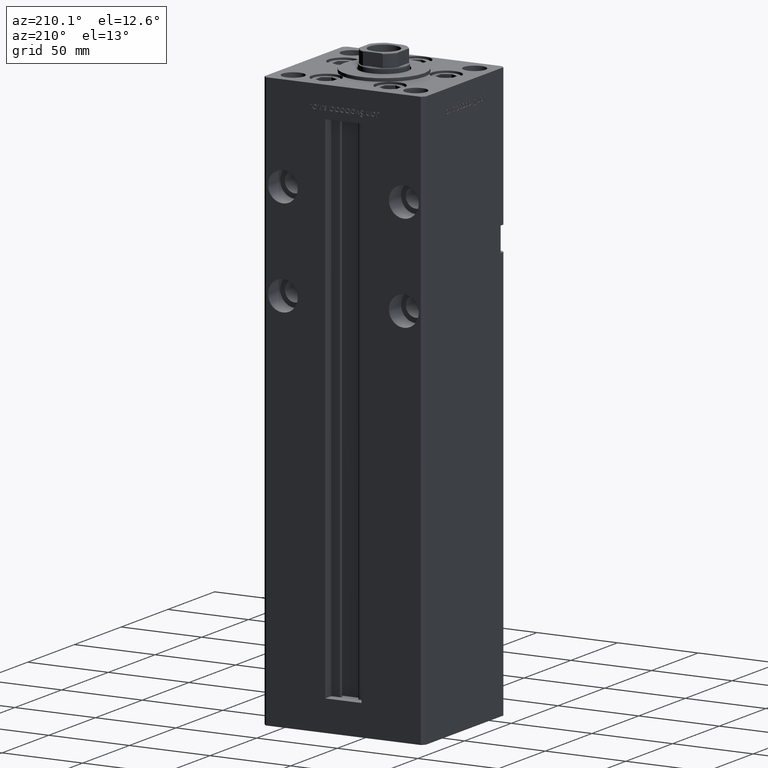
[diagram: clean part render]
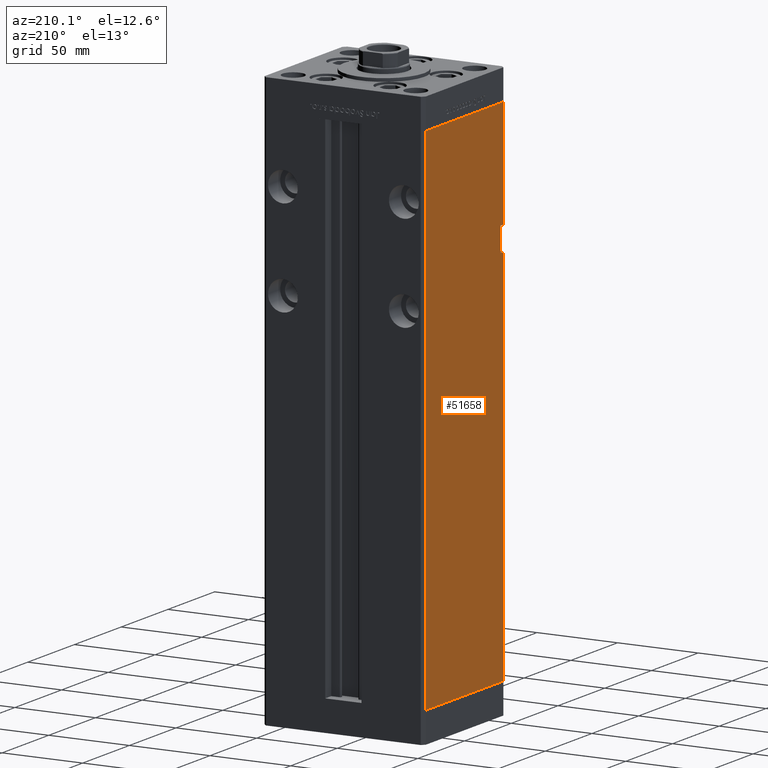
[diagram: same view with one face highlighted and labeled with its STEP entity id]
A machine part, auxiliary view. The second image highlights one B-rep face of the part: STEP entity #51658.
In plain terms, the highlighted planar face has unit normal (1, 0, 0).
Its self-contained STEP definition (entity closure, byte-faithful):
#32 = VECTOR ( 'NONE', #28188, 1000.000000000000000 ) ;
#720 = CARTESIAN_POINT ( 'NONE',  ( -49.99999999999998579, -41.49999999999999289, 236.0000000000000000 ) ) ;
#1061 = EDGE_CURVE ( 'NONE', #40326, #21467, #47812, .T. ) ;
#2598 = FACE_OUTER_BOUND ( 'NONE', #42923, .T. ) ;
#2941 = LINE ( 'NONE', #44570, #32 ) ;
#3122 = VECTOR ( 'NONE', #50078, 1000.000000000000000 ) ;
#3483 = EDGE_CURVE ( 'NONE', #6832, #21467, #7446, .T. ) ;
#3602 = ORIENTED_EDGE ( 'NONE', *, *, #46039, .F. ) ;
#4076 = VECTOR ( 'NONE', #19037, 1000.000000000000000 ) ;
#4580 = DIRECTION ( 'NONE',  ( -0.000000000000000000, -0.000000000000000000, -1.000000000000000000 ) ) ;
#4757 = LINE ( 'NONE', #33523, #17000 ) ;
#5449 = EDGE_CURVE ( 'NONE', #39629, #27663, #4757, .T. ) ;
#6832 = VERTEX_POINT ( 'NONE', #46292 ) ;
#6847 = VERTEX_POINT ( 'NONE', #17800 ) ;
#7446 = LINE ( 'NONE', #40258, #4076 ) ;
#8321 = EDGE_CURVE ( 'NONE', #6832, #37068, #17953, .T. ) ;
#11175 = DIRECTION ( 'NONE',  ( -3.344045254895050480E-16, 1.000000000000000000, 0.000000000000000000 ) ) ;
#13013 = AXIS2_PLACEMENT_3D ( 'NONE', #35401, #47994, #11175 ) ;
#14245 = VECTOR ( 'NONE', #15344, 1000.000000000000000 ) ;
#14637 = ORIENTED_EDGE ( 'NONE', *, *, #5449, .T. ) ;
#15344 = DIRECTION ( 'NONE',  ( -0.000000000000000000, -1.000000000000000000, -0.000000000000000000 ) ) ;
#15506 = ORIENTED_EDGE ( 'NONE', *, *, #21640, .F. ) ;
#17000 = VECTOR ( 'NONE', #29760, 1000.000000000000000 ) ;
#17800 = CARTESIAN_POINT ( 'NONE',  ( -50.00000000000001421, 41.49999999999999289, 318.5000000000000000 ) ) ;
#17949 = ORIENTED_EDGE ( 'NONE', *, *, #27794, .T. ) ;
#17953 = LINE ( 'NONE', #42164, #36020 ) ;
#18807 = DIRECTION ( 'NONE',  ( -0.000000000000000000, -0.000000000000000000, -1.000000000000000000 ) ) ;
#18991 = PLANE ( 'NONE',  #13013 ) ;
#19037 = DIRECTION ( 'NONE',  ( -0.000000000000000000, -1.000000000000000000, -0.000000000000000000 ) ) ;
#20941 = ORIENTED_EDGE ( 'NONE', *, *, #25176, .F. ) ;
#21467 = VERTEX_POINT ( 'NONE', #48665 ) ;
#21515 = LINE ( 'NONE', #33339, #49311 ) ;
#21640 = EDGE_CURVE ( 'NONE', #29461, #27663, #21515, .T. ) ;
#24476 = CARTESIAN_POINT ( 'NONE',  ( -49.99999999999998579, -38.50000000000000000, 236.0000000000000000 ) ) ;
#25176 = EDGE_CURVE ( 'NONE', #37068, #29461, #44888, .T. ) ;
#27663 = VERTEX_POINT ( 'NONE', #30220 ) ;
#27794 = EDGE_CURVE ( 'NONE', #6847, #39629, #29664, .T. ) ;
#28188 = DIRECTION ( 'NONE',  ( 3.344045254895050973E-16, -1.000000000000000000, 0.000000000000000000 ) ) ;
#29461 = VERTEX_POINT ( 'NONE', #720 ) ;
#29664 = LINE ( 'NONE', #45782, #3122 ) ;
#29760 = DIRECTION ( 'NONE',  ( 3.344045254895050973E-16, -1.000000000000000000, 0.000000000000000000 ) ) ;
#30220 = CARTESIAN_POINT ( 'NONE',  ( -49.99999999999998579, -41.49999999999999289, 0.000000000000000000 ) ) ;
#31051 = CARTESIAN_POINT ( 'NONE',  ( -49.99999999999998579, -41.49999999999999289, 318.5000000000000000 ) ) ;
#31171 = CARTESIAN_POINT ( 'NONE',  ( -49.99999999999998579, -38.50000000000000000, 236.0000000000000000 ) ) ;
#33339 = CARTESIAN_POINT ( 'NONE',  ( -49.99999999999998579, -41.49999999999999289, 318.5000000000000000 ) ) ;
#33523 = CARTESIAN_POINT ( 'NONE',  ( -50.00000000000001421, 41.49999999999999289, 0.000000000000000000 ) ) ;
#35401 = CARTESIAN_POINT ( 'NONE',  ( -50.00000000000001421, 41.49999999999999289, 318.5000000000000000 ) ) ;
#35913 = VECTOR ( 'NONE', #18807, 1000.000000000000000 ) ;
#36020 = VECTOR ( 'NONE', #46443, 1000.000000000000000 ) ;
#37068 = VERTEX_POINT ( 'NONE', #31171 ) ;
#39001 = ORIENTED_EDGE ( 'NONE', *, *, #1061, .F. ) ;
#39629 = VERTEX_POINT ( 'NONE', #41281 ) ;
#40258 = CARTESIAN_POINT ( 'NONE',  ( -49.99999999999998579, -38.50000000000000000, 251.0000000000000000 ) ) ;
#40326 = VERTEX_POINT ( 'NONE', #31051 ) ;
#41281 = CARTESIAN_POINT ( 'NONE',  ( -50.00000000000001421, 41.49999999999999289, 0.000000000000000000 ) ) ;
#42164 = CARTESIAN_POINT ( 'NONE',  ( -49.99999999999998579, -38.50000000000000000, 251.0000000000000000 ) ) ;
#42923 = EDGE_LOOP ( 'NONE', ( #15506, #20941, #46350, #44801, #39001, #3602, #17949, #14637 ) ) ;
#44570 = CARTESIAN_POINT ( 'NONE',  ( -50.00000000000001421, 41.49999999999999289, 318.5000000000000000 ) ) ;
#44801 = ORIENTED_EDGE ( 'NONE', *, *, #3483, .T. ) ;
#44888 = LINE ( 'NONE', #24476, #14245 ) ;
#45782 = CARTESIAN_POINT ( 'NONE',  ( -50.00000000000001421, 41.49999999999999289, 318.5000000000000000 ) ) ;
#46039 = EDGE_CURVE ( 'NONE', #6847, #40326, #2941, .T. ) ;
#46292 = CARTESIAN_POINT ( 'NONE',  ( -49.99999999999998579, -38.50000000000000000, 251.0000000000000000 ) ) ;
#46350 = ORIENTED_EDGE ( 'NONE', *, *, #8321, .F. ) ;
#46443 = DIRECTION ( 'NONE',  ( 0.000000000000000000, 0.000000000000000000, -1.000000000000000000 ) ) ;
#47812 = LINE ( 'NONE', #48337, #35913 ) ;
#47994 = DIRECTION ( 'NONE',  ( 1.000000000000000000, 3.344045254895050480E-16, -0.000000000000000000 ) ) ;
#48337 = CARTESIAN_POINT ( 'NONE',  ( -49.99999999999998579, -41.49999999999999289, 318.5000000000000000 ) ) ;
#48665 = CARTESIAN_POINT ( 'NONE',  ( -49.99999999999998579, -41.49999999999999289, 251.0000000000000000 ) ) ;
#49311 = VECTOR ( 'NONE', #4580, 1000.000000000000000 ) ;
#50078 = DIRECTION ( 'NONE',  ( -0.000000000000000000, -0.000000000000000000, -1.000000000000000000 ) ) ;
#51658 = ADVANCED_FACE ( 'NONE', ( #2598 ), #18991, .F. ) ;